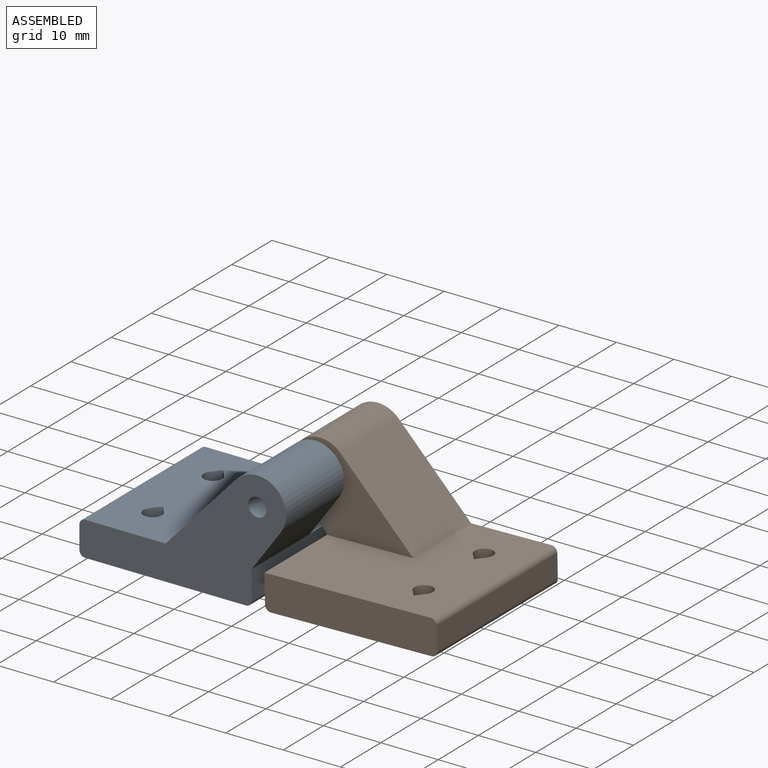
[diagram: assembled view]
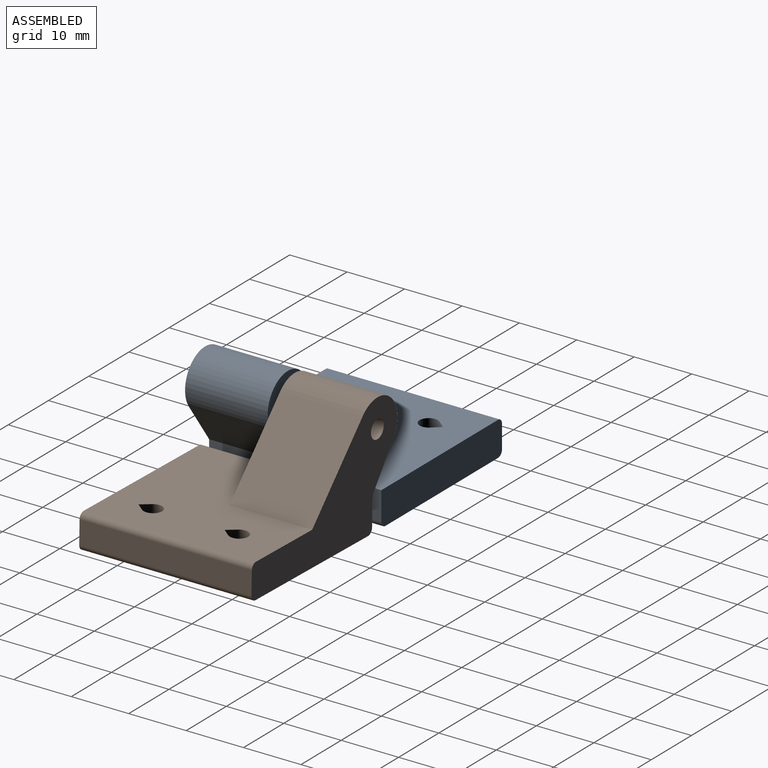
[diagram: assembled view, second angle]
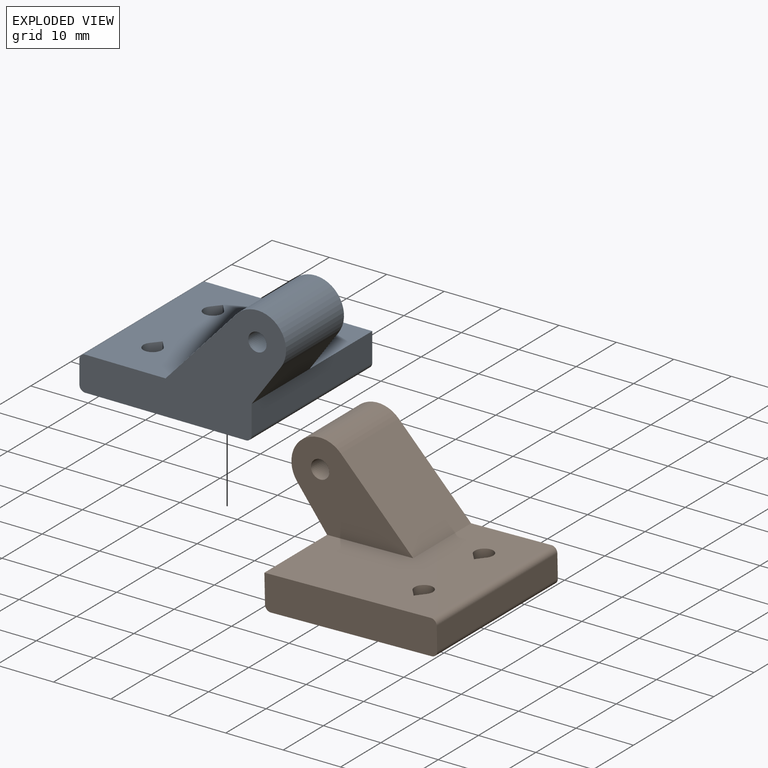
[diagram: exploded view]
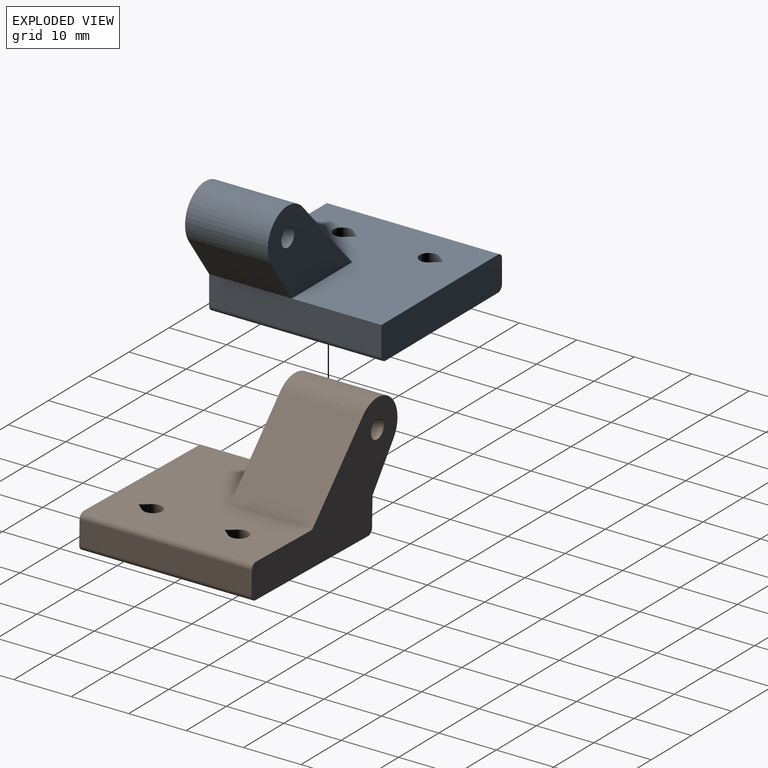
[diagram: exploded view, second angle]
ASSEMBLY  parts=2 mates=2
PART A: 20 faces, bbox 36x30x21 mm
  f0: plane 30x29mm, normal (0,0,1), area 636.3mm2, adj f2,f3,f5,f7,f9,f11,f12,f13
  f1: plane 30x28mm, normal (0,0,-1), area 822.3mm2, adj f3,f5,f11,f12,f13,f14,f15,f16
  f2: plane 30x5mm, normal (1,0,0), area 150mm2, adj f0,f3,f5,f6,f18
  f3: plane 36x21mm, normal (0,-1,0), area 351.3mm2, adj f0,f1,f2,f4,f6,f7,f8,f10
  f4: plane 30x4mm, normal (-1,0,0), area 120mm2, adj f3,f5,f17,f19
  f5: plane 30x6mm, normal (0,1,0), area 179.4mm2, adj f0,f1,f2,f4,f17,f18,f19
  f6: plane 14.4x7.09mm, normal (0.81,0,-0.58), area 125.5mm2, adj f2,f3,f8,f9
  f7: plane 14.4x13.39mm, normal (-0.74,0,0.68), area 262mm2, adj f0,f3,f8,f9
  f8: cylinder r=5mm len=14.4mm, axis (0,-1,0), area 217.3mm2, adj f3,f6,f7,f9
  f9: plane 21x15mm, normal (0,1,0), area 172mm2, adj f0,f6,f7,f8,f10
  f10: cylinder r=1.6mm len=14.4mm, axis (0,1,0), area 144.8mm2, adj f3,f9
  f11: plane 6x1.46mm, normal (-0.77,-0.64,0), area 11.4mm2, adj f0,f1,f12,f13
  f12: cylinder r=1.6mm len=6mm, axis (0,0,1), area 43.6mm2, adj f0,f1,f11,f13
  f13: plane 6x1.46mm, normal (0.77,-0.64,0), area 11.4mm2, adj f0,f1,f11,f12
  f14: plane 6x1.46mm, normal (-0.77,-0.64,0), area 11.4mm2, adj f0,f1,f15,f16
  f15: cylinder r=1.6mm len=6mm, axis (0,0,1), area 43.6mm2, adj f0,f1,f14,f16
  f16: plane 6x1.46mm, normal (0.77,-0.64,0), area 11.4mm2, adj f0,f1,f14,f15
  f17: cylinder r=1mm len=30mm, axis (0,1,0), area 47.1mm2, adj f1,f3,f4,f5
  f18: cylinder r=1mm len=30mm, axis (0,-1,0), area 47.1mm2, adj f1,f2,f3,f5
  f19: cylinder r=1mm len=30mm, axis (0,-1,0), area 47.1mm2, adj f0,f3,f4,f5
PART B: same geometry as A
PLACE A at identity fixed
PLACE B rot(axis=(0.01,0,-1),180deg) t=(-97.64,0,-1.06)mm
MATE cylindrical B.f8 <-> A.f8  axis (0,1,0) through (-49,15,16)mm
MATE planar A.f5 <-> B.f3  axis (0,1,0) through (-64.98,15,3)mm
